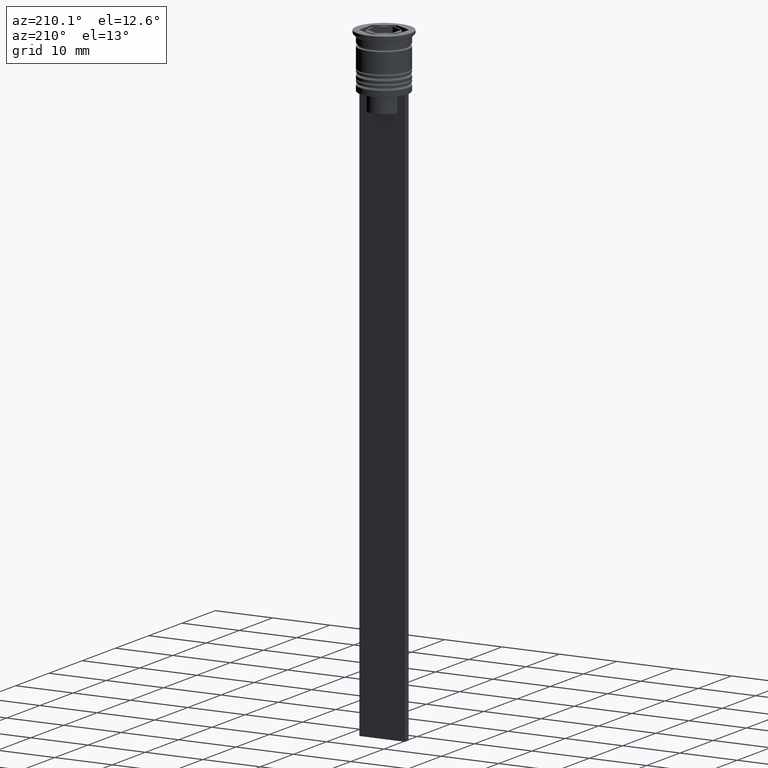
[diagram: clean part render]
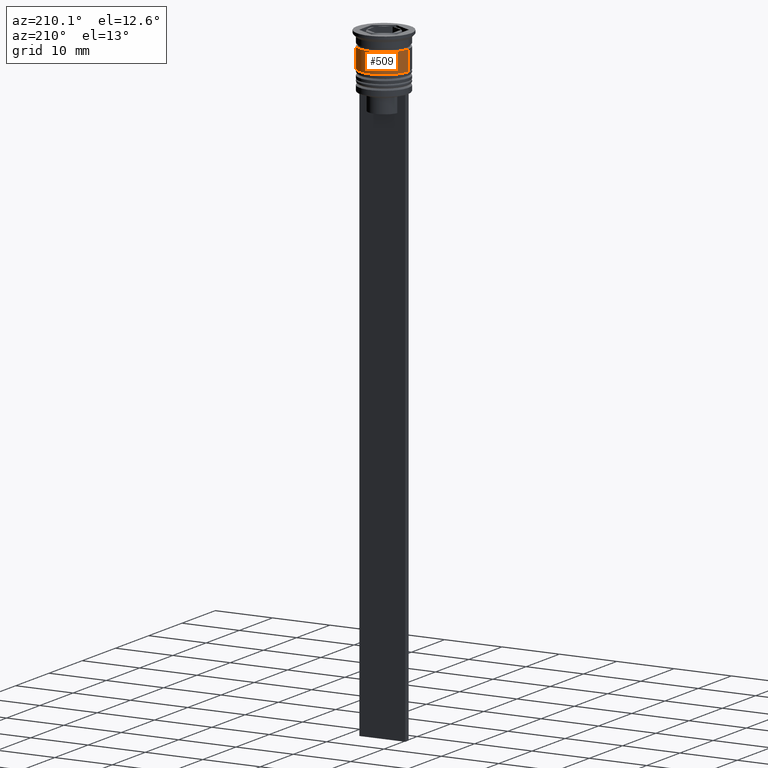
[diagram: same view with one face highlighted and labeled with its STEP entity id]
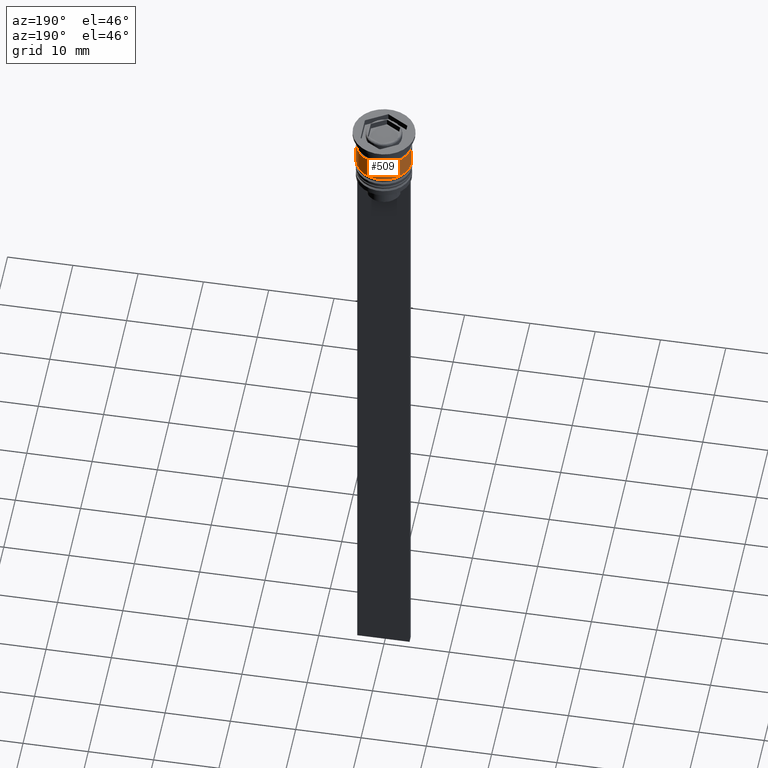
[diagram: same view with one face highlighted and labeled with its STEP entity id]
A machine part, auxiliary view. The second image highlights one B-rep face of the part: STEP entity #509.
A second angle (auxiliary view) of the same face is appended — the face is thin or edge-on in the first view.
In plain terms, the highlighted cylindrical surface (edge-blend (fillet) strip) has radius 4.25 mm, axis along (-0, -0, 1).
Its self-contained STEP definition (entity closure, byte-faithful):
#88 = EDGE_CURVE ( 'NONE', #1315, #1322, #1009, .T. ) ;
#167 = CARTESIAN_POINT ( 'NONE',  ( 0.000000000000000000, 0.000000000000000000, -2.500000000000000000 ) ) ;
#216 = LINE ( 'NONE', #774, #2227 ) ;
#398 = CARTESIAN_POINT ( 'NONE',  ( -4.250000000000000000, 5.204748896376250699E-16, -2.500000000000000000 ) ) ;
#440 = EDGE_CURVE ( 'NONE', #2158, #660, #216, .T. ) ;
#509 = ADVANCED_FACE ( 'NONE', ( #1347 ), #1168, .T. ) ;
#540 = ORIENTED_EDGE ( 'NONE', *, *, #1672, .T. ) ;
#566 = VECTOR ( 'NONE', #1381, 1000.000000000000000 ) ;
#660 = VERTEX_POINT ( 'NONE', #1276 ) ;
#739 = CARTESIAN_POINT ( 'NONE',  ( 4.250000000000000888, 0.000000000000000000, -6.000000000000000000 ) ) ;
#744 = EDGE_LOOP ( 'NONE', ( #540, #2220, #1943, #770 ) ) ;
#770 = ORIENTED_EDGE ( 'NONE', *, *, #440, .F. ) ;
#774 = CARTESIAN_POINT ( 'NONE',  ( 4.250000000000000000, 0.000000000000000000, 0.000000000000000000 ) ) ;
#913 = CIRCLE ( 'NONE', #2024, 4.250000000000000000 ) ;
#972 = AXIS2_PLACEMENT_3D ( 'NONE', #1542, #1645, #1426 ) ;
#1001 = EDGE_CURVE ( 'NONE', #660, #1322, #913, .T. ) ;
#1009 = LINE ( 'NONE', #1946, #566 ) ;
#1027 = DIRECTION ( 'NONE',  ( -0.000000000000000000, -0.000000000000000000, 1.000000000000000000 ) ) ;
#1112 = CARTESIAN_POINT ( 'NONE',  ( -4.250000000000000888, 5.204748896376251685E-16, -6.000000000000000000 ) ) ;
#1147 = AXIS2_PLACEMENT_3D ( 'NONE', #1955, #1027, #2342 ) ;
#1168 = CYLINDRICAL_SURFACE ( 'NONE', #972, 4.250000000000000000 ) ;
#1276 = CARTESIAN_POINT ( 'NONE',  ( 4.250000000000000000, 0.000000000000000000, -2.500000000000000000 ) ) ;
#1315 = VERTEX_POINT ( 'NONE', #1112 ) ;
#1322 = VERTEX_POINT ( 'NONE', #398 ) ;
#1347 = FACE_OUTER_BOUND ( 'NONE', #744, .T. ) ;
#1381 = DIRECTION ( 'NONE',  ( -0.000000000000000000, -0.000000000000000000, 1.000000000000000000 ) ) ;
#1426 = DIRECTION ( 'NONE',  ( 1.000000000000000000, 0.000000000000000000, 0.000000000000000000 ) ) ;
#1542 = CARTESIAN_POINT ( 'NONE',  ( 0.000000000000000000, 0.000000000000000000, 0.000000000000000000 ) ) ;
#1645 = DIRECTION ( 'NONE',  ( -0.000000000000000000, -0.000000000000000000, 1.000000000000000000 ) ) ;
#1672 = EDGE_CURVE ( 'NONE', #2158, #1315, #2173, .T. ) ;
#1681 = DIRECTION ( 'NONE',  ( -0.000000000000000000, -0.000000000000000000, 1.000000000000000000 ) ) ;
#1861 = DIRECTION ( 'NONE',  ( 1.000000000000000000, 0.000000000000000000, 0.000000000000000000 ) ) ;
#1885 = DIRECTION ( 'NONE',  ( -0.000000000000000000, -0.000000000000000000, 1.000000000000000000 ) ) ;
#1943 = ORIENTED_EDGE ( 'NONE', *, *, #1001, .F. ) ;
#1946 = CARTESIAN_POINT ( 'NONE',  ( -4.250000000000000000, 5.204748896376250699E-16, 0.000000000000000000 ) ) ;
#1955 = CARTESIAN_POINT ( 'NONE',  ( 0.000000000000000000, 0.000000000000000000, -6.000000000000000000 ) ) ;
#2024 = AXIS2_PLACEMENT_3D ( 'NONE', #167, #1681, #1861 ) ;
#2158 = VERTEX_POINT ( 'NONE', #739 ) ;
#2173 = CIRCLE ( 'NONE', #1147, 4.250000000000000888 ) ;
#2220 = ORIENTED_EDGE ( 'NONE', *, *, #88, .T. ) ;
#2227 = VECTOR ( 'NONE', #1885, 1000.000000000000000 ) ;
#2342 = DIRECTION ( 'NONE',  ( 1.000000000000000000, 0.000000000000000000, 0.000000000000000000 ) ) ;